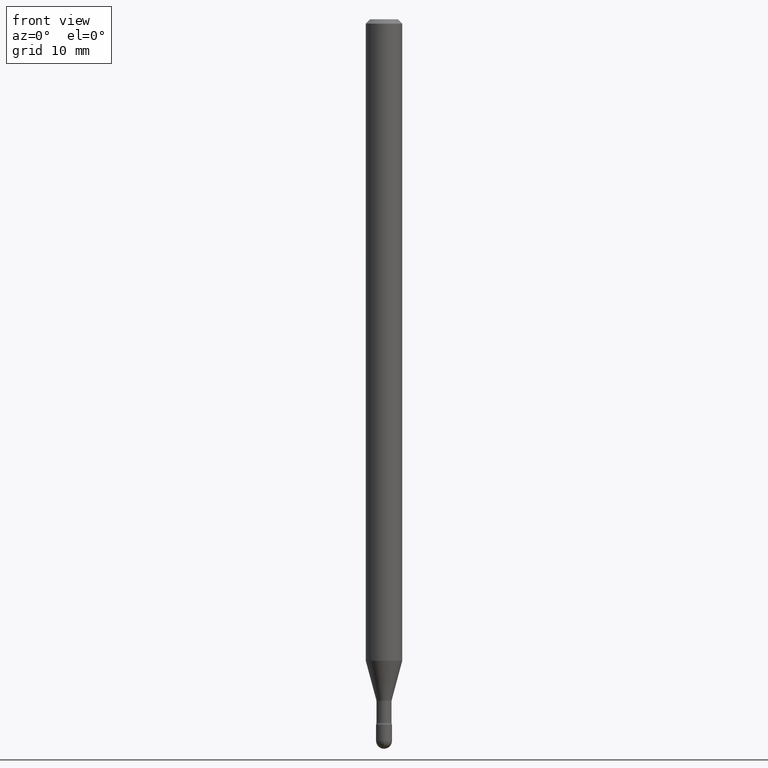
[diagram: clean part render]
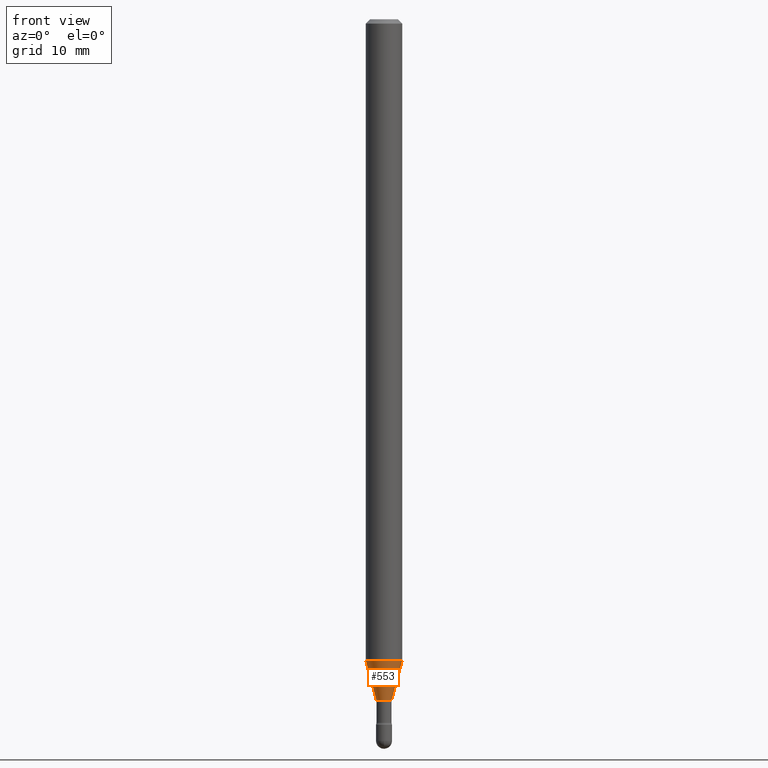
[diagram: same view with one face highlighted and labeled with its STEP entity id]
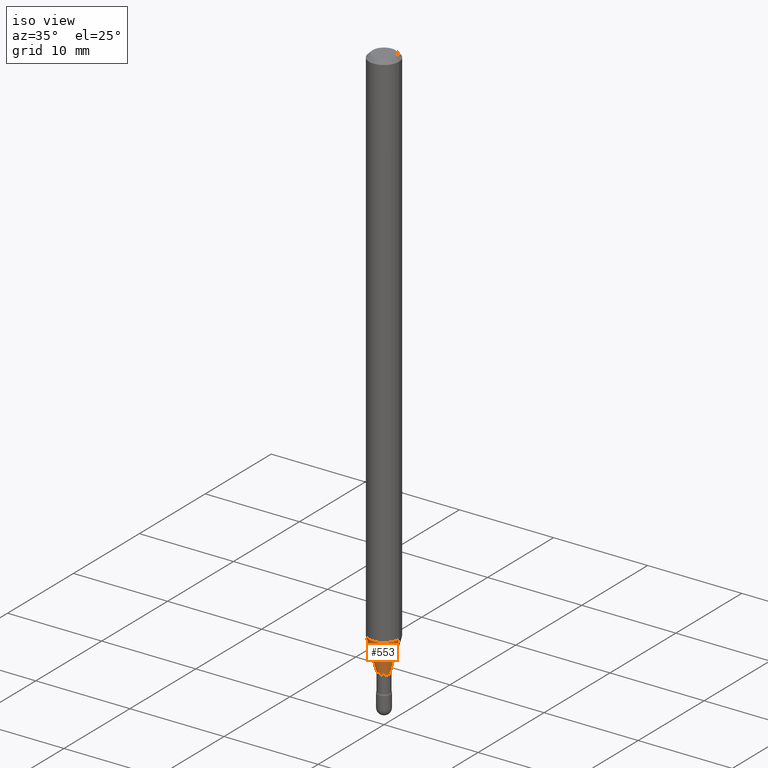
[diagram: same view with one face highlighted and labeled with its STEP entity id]
A machine part, front view. The second image highlights one B-rep face of the part: STEP entity #553.
A second angle (iso view) of the same face is appended — the face is thin or edge-on in the first view.
In plain terms, the highlighted conical surface has half-angle 15 deg.
Its self-contained STEP definition (entity closure, byte-faithful):
#42 = DIRECTION ( 'NONE',  ( -2.445468806185136597E-29, 3.491481338843145583E-15, 1.000000000000000000 ) ) ;
#44 = EDGE_CURVE ( 'NONE', #287, #237, #396, .T. ) ;
#64 = DIRECTION ( 'NONE',  ( 0.2588190451025210170, 1.565188264969624531E-15, 0.9659258262890682012 ) ) ;
#86 = FACE_OUTER_BOUND ( 'NONE', #552, .T. ) ;
#103 = CARTESIAN_POINT ( 'NONE',  ( 0.02636111260566398329, -8.330027597252768852E-15, -2.333092501787273232 ) ) ;
#165 = VERTEX_POINT ( 'NONE', #542 ) ;
#172 = CARTESIAN_POINT ( 'NONE',  ( -0.06250000000000000000, -7.230956078602342966E-15, -2.198220337902601074 ) ) ;
#208 = CARTESIAN_POINT ( 'NONE',  ( 5.705504935065216427E-29, -8.145948931785133025E-15, -2.333092501787273232 ) ) ;
#211 = AXIS2_PLACEMENT_3D ( 'NONE', #388, #42, #213 ) ;
#213 = DIRECTION ( 'NONE',  ( 1.000000000000000000, -6.982962677686262766E-15, 0.000000000000000000 ) ) ;
#232 = AXIS2_PLACEMENT_3D ( 'NONE', #316, #471, #381 ) ;
#237 = VERTEX_POINT ( 'NONE', #484 ) ;
#258 = AXIS2_PLACEMENT_3D ( 'NONE', #208, #556, #333 ) ;
#278 = CARTESIAN_POINT ( 'NONE',  ( -0.02636111260566398329, -7.958641961100047528E-15, -2.333092501787273232 ) ) ;
#287 = VERTEX_POINT ( 'NONE', #172 ) ;
#300 = EDGE_CURVE ( 'NONE', #165, #237, #399, .T. ) ;
#301 = ORIENTED_EDGE ( 'NONE', *, *, #545, .T. ) ;
#307 = ORIENTED_EDGE ( 'NONE', *, *, #300, .T. ) ;
#316 = CARTESIAN_POINT ( 'NONE',  ( 5.705504935065216427E-29, -8.145948931785133025E-15, -2.333092501787273232 ) ) ;
#326 = CONICAL_SURFACE ( 'NONE', #232, 0.02636111260566398329, 0.2617993877991496854 ) ;
#332 = VECTOR ( 'NONE', #478, 39.37007874015748143 ) ;
#333 = DIRECTION ( 'NONE',  ( 1.000000000000000000, -6.982962677686256455E-15, 0.000000000000000000 ) ) ;
#344 = VECTOR ( 'NONE', #64, 39.37007874015748143 ) ;
#381 = DIRECTION ( 'NONE',  ( 1.000000000000000000, -6.982962677686256455E-15, 0.000000000000000000 ) ) ;
#388 = CARTESIAN_POINT ( 'NONE',  ( 5.375679265462560583E-29, -7.675045288452405582E-15, -2.198220337902601074 ) ) ;
#396 = CIRCLE ( 'NONE', #211, 0.06250000000000000000 ) ;
#398 = ORIENTED_EDGE ( 'NONE', *, *, #496, .F. ) ;
#399 = LINE ( 'NONE', #103, #344 ) ;
#404 = ORIENTED_EDGE ( 'NONE', *, *, #44, .F. ) ;
#462 = CARTESIAN_POINT ( 'NONE',  ( -0.02636111260566398329, -7.594799019851195247E-15, -2.333092501787273232 ) ) ;
#471 = DIRECTION ( 'NONE',  ( -2.445468806185136597E-29, 3.491481338843145583E-15, 1.000000000000000000 ) ) ;
#478 = DIRECTION ( 'NONE',  ( -0.2588190451025210170, 5.211531920934547886E-15, 0.9659258262890682012 ) ) ;
#484 = CARTESIAN_POINT ( 'NONE',  ( 0.06250000000000000000, -8.111480455807797251E-15, -2.198220337902601074 ) ) ;
#496 = EDGE_CURVE ( 'NONE', #549, #287, #508, .T. ) ;
#497 = CIRCLE ( 'NONE', #258, 0.02636111260566398329 ) ;
#508 = LINE ( 'NONE', #278, #332 ) ;
#542 = CARTESIAN_POINT ( 'NONE',  ( 0.02636111260566398329, -8.330027597252768852E-15, -2.333092501787273232 ) ) ;
#545 = EDGE_CURVE ( 'NONE', #549, #165, #497, .T. ) ;
#549 = VERTEX_POINT ( 'NONE', #462 ) ;
#552 = EDGE_LOOP ( 'NONE', ( #398, #301, #307, #404 ) ) ;
#553 = ADVANCED_FACE ( 'NONE', ( #86 ), #326, .T. ) ;
#556 = DIRECTION ( 'NONE',  ( -2.445468806185136597E-29, 3.491481338843145583E-15, 1.000000000000000000 ) ) ;